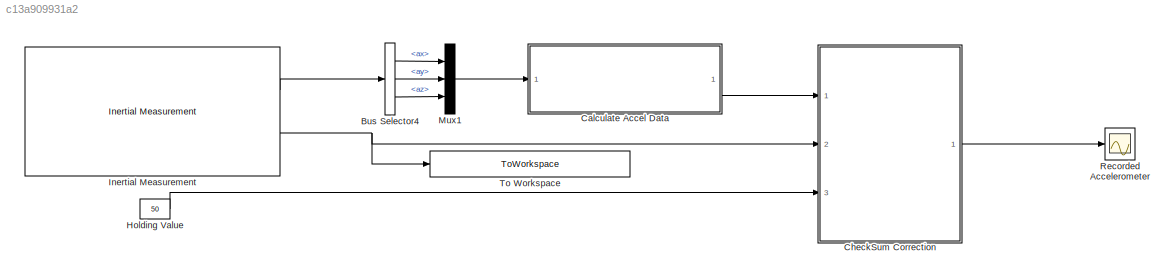
MODEL slx_c13a909931a2
KIND model
CONFIG AbsTol = auto
CONFIG FixedStep = auto
CONFIG MaxStep = auto
CONFIG MinStep = auto
CONFIG RelTol = 1e-3
CONFIG SampleTimeConstraint = Unconstrained
CONFIG Solver = ode45
CONFIG SolverMode = SingleTasking
CONFIG SolverName = ode45
CONFIG StartTime = 0.0
CONFIG StopTime = 10.0
BLOCK [BusSelector] Bus Selector4
  OutputSignals = ax,ay,az
  Ports = [1, 3]
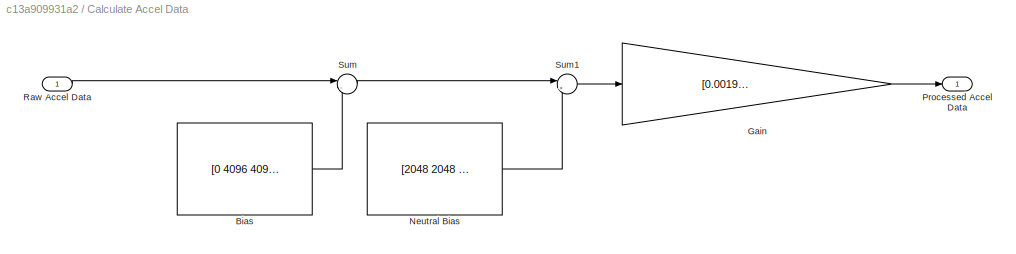
BLOCK [SubSystem] Calculate Accel Data
  Commented = through
  Ports = [1, 1]
  RequestExecContextInheritance = off
BLOCK [Constant] Calculate Accel Data/Bias
  Value = [0 4096 4096]
BLOCK [Gain] Calculate Accel Data/Gain
  Gain = [0.001953125, 0.001953125, 0.001953125]
  OutDataTypeStr = Inherit: Inherit via internal rule
  ParamDataTypeStr = Inherit: Inherit via internal rule
  SaturateOnIntegerOverflow = off
BLOCK [Constant] Calculate Accel Data/Neutral Bias
  Value = [2048 2048 2048]
BLOCK [Outport] Calculate Accel Data/Processed Accel Data
  IconDisplay = Port number
BLOCK [Inport] Calculate Accel Data/Raw Accel Data
  IconDisplay = Port number
BLOCK [Sum] Calculate Accel Data/Sum
  IconShape = round
  InputSameDT = off
  Inputs = |-+
  OutDataTypeStr = Inherit: Inherit via internal rule
  Ports = [2, 1]
  SaturateOnIntegerOverflow = off
BLOCK [Sum] Calculate Accel Data/Sum1
  IconShape = round
  InputSameDT = off
  Inputs = |+-
  OutDataTypeStr = Inherit: Inherit via internal rule
  Ports = [2, 1]
  SaturateOnIntegerOverflow = off
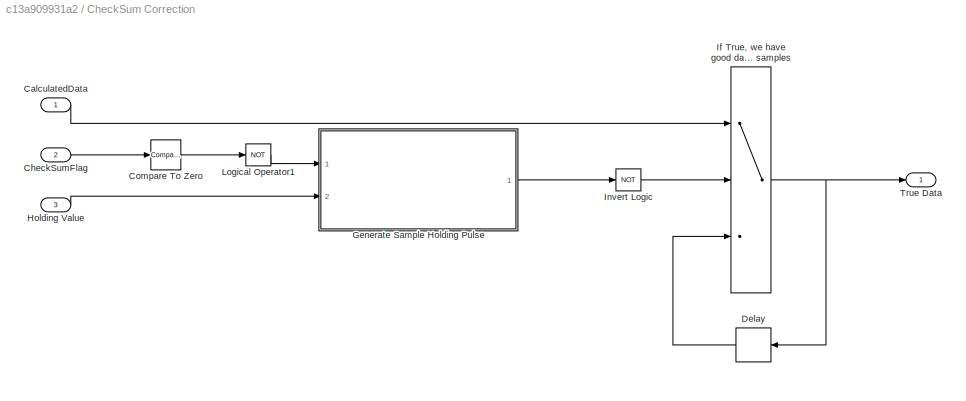
BLOCK [SubSystem] CheckSum Correction
  Ports = [3, 1]
  RequestExecContextInheritance = off
BLOCK [Inport] CheckSum Correction/CalculatedData
  IconDisplay = Port number
BLOCK [Inport] CheckSum Correction/CheckSumFlag
  IconDisplay = Port number
  Port = 2
BLOCK [Reference] CheckSum Correction/Compare To Zero  REF=simulink/Logic and Bit
Operations/Compare
To Zero
  OutDataTypeStr = boolean
  Ports = [1, 1]
  SourceBlock = simulink/Logic and Bit\nOperations/Compare\nTo Zero
  SourceType = Compare To Zero
  ZeroCross = on
  relop = >
BLOCK [Delay] CheckSum Correction/Delay
  DelayLength = 3
  InitialCondition = 0
  InputPortMap = u0
  Ports = [1, 1]
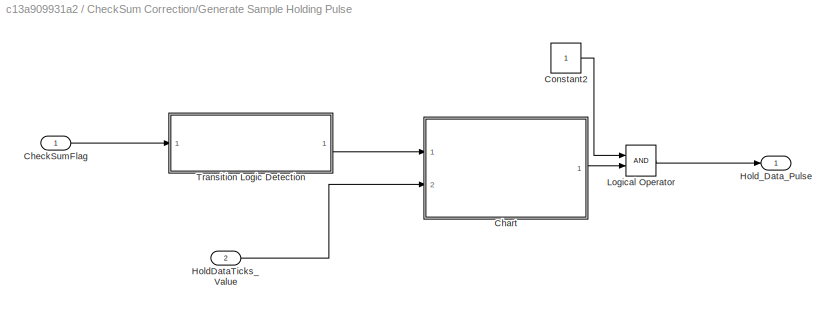
BLOCK [SubSystem] CheckSum Correction/Generate Sample Holding Pulse
  Ports = [2, 1]
  RequestExecContextInheritance = off
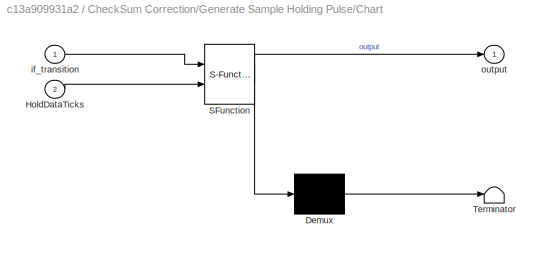
BLOCK [SubSystem] CheckSum Correction/Generate Sample Holding Pulse/Chart
  ErrorFcn = Stateflow.Translate.translate
  PermitHierarchicalResolution = ExplicitOnly
  Ports = [2, 1]
  RequestExecContextInheritance = off
  SFBlockType = Chart
  TreatAsAtomicUnit = on
BLOCK [Demux] CheckSum Correction/Generate Sample Holding Pulse/Chart/ Demux 
  Outputs = 1
  Ports = [1, 1]
BLOCK [S-Function] CheckSum Correction/Generate Sample Holding Pulse/Chart/ SFunction 
  EnableBusSupport = on
  FunctionName = sf_sfun
  PortCounts = [2 2]
  Ports = [2, 2]
  Tag = Stateflow S-Function Record_accelerometer 2
BLOCK [Terminator] CheckSum Correction/Generate Sample Holding Pulse/Chart/ Terminator 
BLOCK [Inport] CheckSum Correction/Generate Sample Holding Pulse/Chart/HoldDataTicks
  IconDisplay = Port number
  Port = 2
BLOCK [Inport] CheckSum Correction/Generate Sample Holding Pulse/Chart/if_transition
  IconDisplay = Port number
BLOCK [Outport] CheckSum Correction/Generate Sample Holding Pulse/Chart/output
  IconDisplay = Port number
BLOCK [Inport] CheckSum Correction/Generate Sample Holding Pulse/CheckSumFlag
  IconDisplay = Port number
BLOCK [Constant] CheckSum Correction/Generate Sample Holding Pulse/Constant2
BLOCK [Inport] CheckSum Correction/Generate Sample Holding Pulse/HoldDataTicks_Value
  IconDisplay = Port number
  Port = 2
BLOCK [Outport] CheckSum Correction/Generate Sample Holding Pulse/Hold_Data_Pulse
  IconDisplay = Port number
BLOCK [Logic] CheckSum Correction/Generate Sample Holding Pulse/Logical Operator
  AllPortsSameDT = off
  OutDataTypeStr = boolean
  Ports = [2, 1]
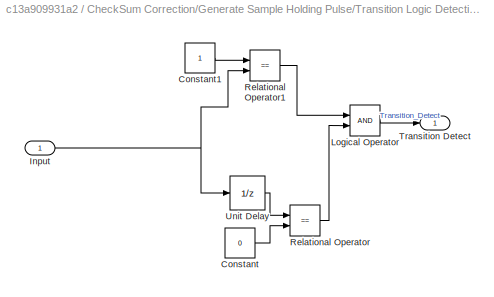
BLOCK [SubSystem] CheckSum Correction/Generate Sample Holding Pulse/Transition Logic Detection
  Ports = [1, 1]
  RequestExecContextInheritance = off
BLOCK [Constant] CheckSum Correction/Generate Sample Holding Pulse/Transition Logic Detection/Constant
  Value = 0
BLOCK [Constant] CheckSum Correction/Generate Sample Holding Pulse/Transition Logic Detection/Constant1
BLOCK [Inport] CheckSum Correction/Generate Sample Holding Pulse/Transition Logic Detection/Input
  IconDisplay = Port number
BLOCK [Logic] CheckSum Correction/Generate Sample Holding Pulse/Transition Logic Detection/Logical Operator
  AllPortsSameDT = off
  OutDataTypeStr = boolean
  Ports = [2, 1]
BLOCK [RelationalOperator] CheckSum Correction/Generate Sample Holding Pulse/Transition Logic Detection/Relational Operator
  InputSameDT = off
  Operator = ==
  OutDataTypeStr = boolean
  Ports = [2, 1]
BLOCK [RelationalOperator] CheckSum Correction/Generate Sample Holding Pulse/Transition Logic Detection/Relational Operator1
  InputSameDT = off
  Operator = ==
  OutDataTypeStr = boolean
  Ports = [2, 1]
BLOCK [Outport] CheckSum Correction/Generate Sample Holding Pulse/Transition Logic Detection/Transition Detect
  IconDisplay = Port number
BLOCK [UnitDelay] CheckSum Correction/Generate Sample Holding Pulse/Transition Logic Detection/Unit Delay
  InputProcessing = Elements as channels (sample based)
  SampleTime = -1
BLOCK [Inport] CheckSum Correction/Holding Value
  IconDisplay = Port number
  Port = 3
BLOCK [Switch] CheckSum Correction/If True, we have good data, If false, we have bad data, With bad data, use previous good data from N samples ago and hold it on that value for M samples
  Criteria = u2 > Threshold
  InputSameDT = off
  SaturateOnIntegerOverflow = off
BLOCK [Logic] CheckSum Correction/Invert Logic
  AllPortsSameDT = off
  Operator = NOT
  OutDataTypeStr = boolean
  Ports = [1, 1]
BLOCK [Logic] CheckSum Correction/Logical Operator1
  AllPortsSameDT = off
  Operator = NOT
  OutDataTypeStr = boolean
  Ports = [1, 1]
BLOCK [Outport] CheckSum Correction/True Data
  IconDisplay = Port number
BLOCK [Constant] Holding Value
  Value = 50
BLOCK [Reference] Inertial Measurement  REF=AR_Drone_2_Library/Inertial Measurement
  Ports = [0, 2]
  SourceBlock = AR_Drone_2_Library/Inertial Measurement
  Ts = 1/400
BLOCK [Mux] Mux1
  DisplayOption = bar
  Inputs = 3
  Ports = [3, 1]
BLOCK [Scope] Recorded Accelerometer
  DataFormat = StructureWithTime
  Floating = off
  LimitDataPoints = off
  NumInputPorts = 1
  Ports = [1]
  SampleTime = 0
  SaveName = Recorded_Accelerometer
  SaveToWorkspace = on
  YMax = 2050
  YMin = 1550
  ZoomMode = yonly
BLOCK [ToWorkspace] To Workspace
  FixptAsFi = on
  MaxDataPoints = inf
  Ports = [1]
  SampleTime = -1
  Save2DSignal = 3-D array (concatenate along third dimension)
  SaveFormat = Structure With Time
  VariableName = TestNumericalEquivilance_ChkSum
LINE Bus Selector4:1 -> Mux1:1
LINE Bus Selector4:2 -> Mux1:2
LINE Bus Selector4:3 -> Mux1:3
LINE Calculate Accel Data/Bias:1 -> Calculate Accel Data/Sum:2
LINE Calculate Accel Data/Gain:1 -> Calculate Accel Data/Processed Accel Data:1
LINE Calculate Accel Data/Neutral Bias:1 -> Calculate Accel Data/Sum1:2
LINE Calculate Accel Data/Raw Accel Data:1 -> Calculate Accel Data/Sum:1
LINE Calculate Accel Data/Sum1:1 -> Calculate Accel Data/Gain:1
LINE Calculate Accel Data/Sum:1 -> Calculate Accel Data/Sum1:1
LINE Calculate Accel Data:1 -> CheckSum Correction:1
LINE CheckSum Correction/CalculatedData:1 -> CheckSum Correction/If True, we have good data, If false, we have bad data, With bad data, use previous good data from N samples ago and hold it on that value for M samples:1
LINE CheckSum Correction/CheckSumFlag:1 -> CheckSum Correction/Compare To Zero:1
LINE CheckSum Correction/Compare To Zero:1 -> CheckSum Correction/Logical Operator1:1
LINE CheckSum Correction/Delay:1 -> CheckSum Correction/If True, we have good data, If false, we have bad data, With bad data, use previous good data from N samples ago and hold it on that value for M samples:3
LINE CheckSum Correction/Generate Sample Holding Pulse/Chart:1 -> CheckSum Correction/Generate Sample Holding Pulse/Logical Operator:2
LINE CheckSum Correction/Generate Sample Holding Pulse/CheckSumFlag:1 -> CheckSum Correction/Generate Sample Holding Pulse/Transition Logic Detection:1
LINE CheckSum Correction/Generate Sample Holding Pulse/Constant2:1 -> CheckSum Correction/Generate Sample Holding Pulse/Logical Operator:1
LINE CheckSum Correction/Generate Sample Holding Pulse/HoldDataTicks_Value:1 -> CheckSum Correction/Generate Sample Holding Pulse/Chart:2
LINE CheckSum Correction/Generate Sample Holding Pulse/Logical Operator:1 -> CheckSum Correction/Generate Sample Holding Pulse/Hold_Data_Pulse:1
LINE CheckSum Correction/Generate Sample Holding Pulse/Transition Logic Detection/Constant1:1 -> CheckSum Correction/Generate Sample Holding Pulse/Transition Logic Detection/Relational Operator1:1
LINE CheckSum Correction/Generate Sample Holding Pulse/Transition Logic Detection/Constant:1 -> CheckSum Correction/Generate Sample Holding Pulse/Transition Logic Detection/Relational Operator:2
NET CheckSum Correction/Generate Sample Holding Pulse/Transition Logic Detection/Input:1 -> CheckSum Correction/Generate Sample Holding Pulse/Transition Logic Detection/Relational Operator1:2, CheckSum Correction/Generate Sample Holding Pulse/Transition Logic Detection/Unit Delay:1
LINE CheckSum Correction/Generate Sample Holding Pulse/Transition Logic Detection/Logical Operator:1 -> CheckSum Correction/Generate Sample Holding Pulse/Transition Logic Detection/Transition Detect:1
LINE CheckSum Correction/Generate Sample Holding Pulse/Transition Logic Detection/Relational Operator1:1 -> CheckSum Correction/Generate Sample Holding Pulse/Transition Logic Detection/Logical Operator:1
LINE CheckSum Correction/Generate Sample Holding Pulse/Transition Logic Detection/Relational Operator:1 -> CheckSum Correction/Generate Sample Holding Pulse/Transition Logic Detection/Logical Operator:2
LINE CheckSum Correction/Generate Sample Holding Pulse/Transition Logic Detection/Unit Delay:1 -> CheckSum Correction/Generate Sample Holding Pulse/Transition Logic Detection/Relational Operator:1
LINE CheckSum Correction/Generate Sample Holding Pulse/Transition Logic Detection:1 -> CheckSum Correction/Generate Sample Holding Pulse/Chart:1
LINE CheckSum Correction/Generate Sample Holding Pulse:1 -> CheckSum Correction/Invert Logic:1
LINE CheckSum Correction/Holding Value:1 -> CheckSum Correction/Generate Sample Holding Pulse:2
NET CheckSum Correction/If True, we have good data, If false, we have bad data, With bad data, use previous good data from N samples ago and hold it on that value for M samples:1 -> CheckSum Correction/Delay:1, CheckSum Correction/True Data:1
LINE CheckSum Correction/Invert Logic:1 -> CheckSum Correction/If True, we have good data, If false, we have bad data, With bad data, use previous good data from N samples ago and hold it on that value for M samples:2
LINE CheckSum Correction/Logical Operator1:1 -> CheckSum Correction/Generate Sample Holding Pulse:1
LINE CheckSum Correction:1 -> Recorded Accelerometer:1
LINE Holding Value:1 -> CheckSum Correction:3
LINE Inertial Measurement:1 -> Bus Selector4:1
NET Inertial Measurement:2 -> CheckSum Correction:2, To Workspace:1
LINE Mux1:1 -> Calculate Accel Data:1
note: NET lines group one-source signal fan-out (src -> all destinations, sorted); 1:1 wires keep LINE
CHART CheckSum Correction/Generate Sample Holding Pulse/Chart states=3 transitions=5
  STATE_LABEL 'Begin_State0\nentry: output =0;'
  STATE_LABEL 'Begin_State\nentry: output =1;'
  STATE_LABEL 'End_State\nentry: output=0;'
